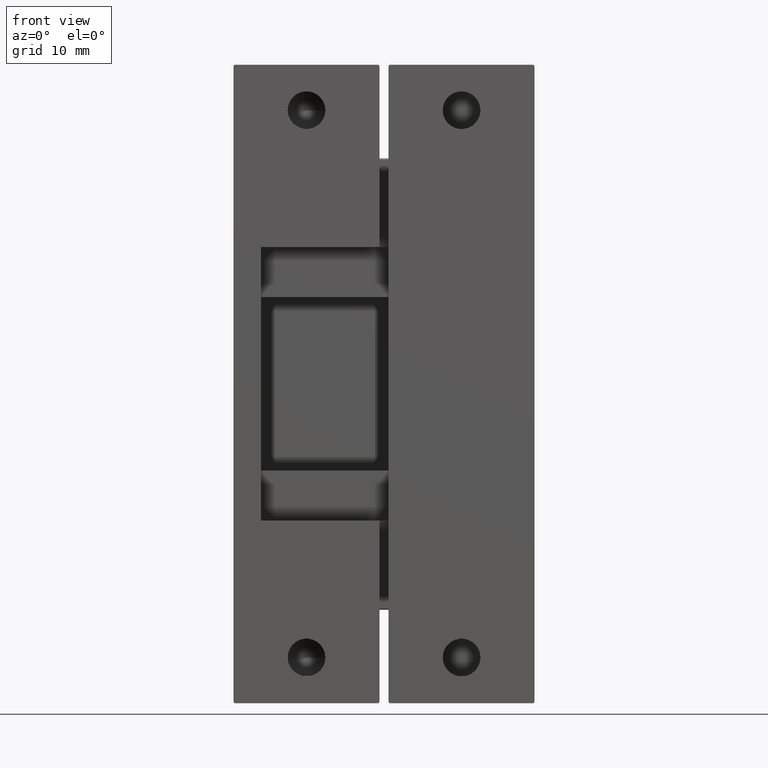
[diagram: clean part render]
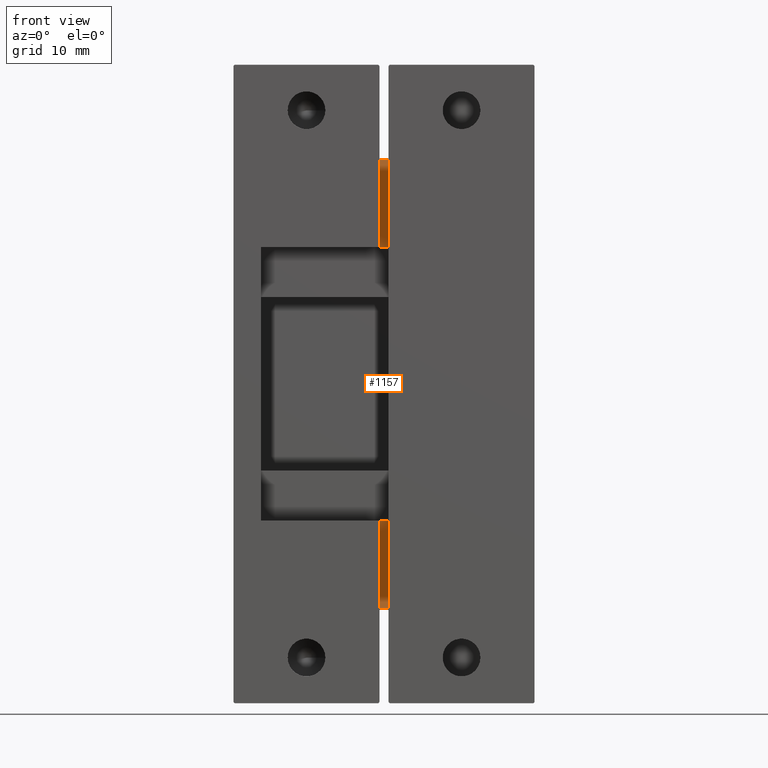
[diagram: same view with one face highlighted and labeled with its STEP entity id]
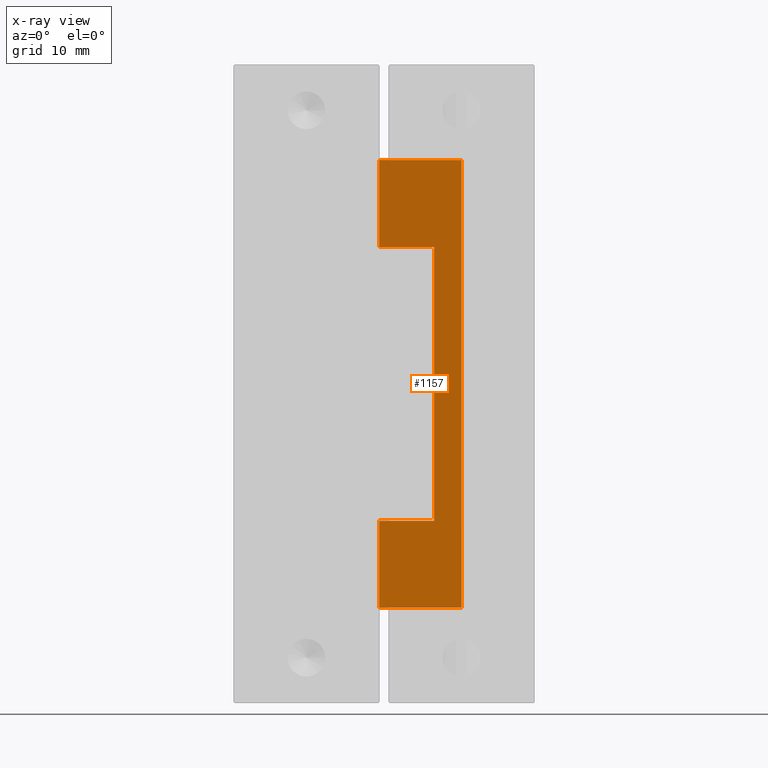
[diagram: x-ray of the same camera — body ghosted, the highlighted face saturated]
A machine part, front view. The second image highlights one B-rep face of the part: STEP entity #1157.
The next image is the same camera in x-ray: the body ghosted, the highlighted face saturated — about 0% of this face is hidden behind the body in this view.
In plain terms, the highlighted planar face has unit normal (0, -1, 0).
Its self-contained STEP definition (entity closure, byte-faithful):
#66=PLANE('',#1238);
#107=FACE_OUTER_BOUND('',#179,.T.);
#179=EDGE_LOOP('',(#812,#813,#814,#815,#816,#817,#818,#819));
#280=LINE('',#1787,#371);
#281=LINE('',#1790,#372);
#282=LINE('',#1792,#373);
#283=LINE('',#1794,#374);
#284=LINE('',#1796,#375);
#285=LINE('',#1798,#376);
#286=LINE('',#1800,#377);
#287=LINE('',#1801,#378);
#371=VECTOR('',#1397,9.00000000000001);
#372=VECTOR('',#1400,49.1);
#373=VECTOR('',#1401,9.00000000000001);
#374=VECTOR('',#1402,9.55);
#375=VECTOR('',#1403,6.00000000000001);
#376=VECTOR('',#1404,30.);
#377=VECTOR('',#1405,6.00000000000001);
#378=VECTOR('',#1406,9.55000000000001);
#531=VERTEX_POINT('',#1777);
#533=VERTEX_POINT('',#1783);
#535=VERTEX_POINT('',#1789);
#536=VERTEX_POINT('',#1791);
#537=VERTEX_POINT('',#1793);
#538=VERTEX_POINT('',#1795);
#539=VERTEX_POINT('',#1797);
#540=VERTEX_POINT('',#1799);
#646=EDGE_CURVE('',#531,#533,#280,.T.);
#647=EDGE_CURVE('',#535,#531,#281,.T.);
#648=EDGE_CURVE('',#536,#535,#282,.T.);
#649=EDGE_CURVE('',#537,#536,#283,.T.);
#650=EDGE_CURVE('',#537,#538,#284,.T.);
#651=EDGE_CURVE('',#538,#539,#285,.T.);
#652=EDGE_CURVE('',#539,#540,#286,.T.);
#653=EDGE_CURVE('',#533,#540,#287,.T.);
#812=ORIENTED_EDGE('',*,*,#646,.F.);
#813=ORIENTED_EDGE('',*,*,#647,.F.);
#814=ORIENTED_EDGE('',*,*,#648,.F.);
#815=ORIENTED_EDGE('',*,*,#649,.F.);
#816=ORIENTED_EDGE('',*,*,#650,.T.);
#817=ORIENTED_EDGE('',*,*,#651,.T.);
#818=ORIENTED_EDGE('',*,*,#652,.T.);
#819=ORIENTED_EDGE('',*,*,#653,.F.);
#1157=ADVANCED_FACE('',(#107),#66,.T.);
#1238=AXIS2_PLACEMENT_3D('',#1788,#1398,#1399);
#1397=DIRECTION('',(-1.,-1.30614473485313E-16,0.));
#1398=DIRECTION('center_axis',(1.30614473485313E-16,-1.,0.));
#1399=DIRECTION('ref_axis',(-1.,-8.88178419700125E-17,0.));
#1400=DIRECTION('',(0.,0.,-1.));
#1401=DIRECTION('',(1.,1.30614473485313E-16,0.));
#1402=DIRECTION('',(0.,0.,1.));
#1403=DIRECTION('',(1.,1.30614473485313E-16,0.));
#1404=DIRECTION('',(0.,0.,-1.));
#1405=DIRECTION('',(-1.,-1.30614473485313E-16,0.));
#1406=DIRECTION('',(0.,0.,1.));
#1777=CARTESIAN_POINT('',(17.,5.,-59.55));
#1783=CARTESIAN_POINT('',(7.99999999999999,5.,-59.55));
#1787=CARTESIAN_POINT('',(14.0889346188294,5.,-59.55));
#1788=CARTESIAN_POINT('Origin',(17.,5.,-10.25));
#1789=CARTESIAN_POINT('',(17.,5.,-10.45));
#1790=CARTESIAN_POINT('',(17.,5.,-10.25));
#1791=CARTESIAN_POINT('',(7.99999999999999,5.,-10.45));
#1792=CARTESIAN_POINT('',(14.0889346188294,5.,-10.45));
#1793=CARTESIAN_POINT('',(7.99999999999999,5.,-20.));
#1794=CARTESIAN_POINT('',(7.99999999999999,5.,-5.125));
#1795=CARTESIAN_POINT('',(14.,5.,-20.));
#1796=CARTESIAN_POINT('',(6.00000000000001,5.,-20.));
#1797=CARTESIAN_POINT('',(14.,5.,-50.));
#1798=CARTESIAN_POINT('',(14.,5.,-15.125));
#1799=CARTESIAN_POINT('',(7.99999999999999,5.,-50.));
#1800=CARTESIAN_POINT('',(15.5,5.,-50.));
#1801=CARTESIAN_POINT('',(7.99999999999999,5.,-5.125));